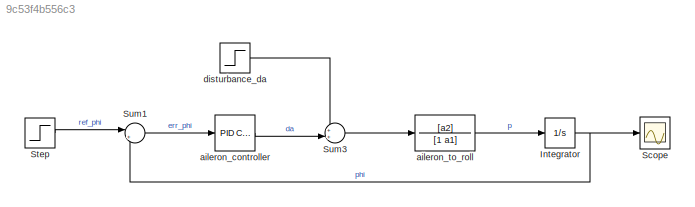
MODEL slx_9c53f4b556c3
KIND model
CONFIG AbsTol = auto
CONFIG EnableMultiTasking = off
CONFIG FixedStep = auto
CONFIG MaxStep = auto
CONFIG MinStep = auto
CONFIG RelTol = 1e-3
CONFIG SampleTimeConstraint = Unconstrained
CONFIG SolverName = VariableStepAuto
CONFIG StartTime = 0.0
CONFIG StopTime = 10.0
BLOCK [Integrator] Integrator
BLOCK [Scope] Scope
  Floating = off
  NumInputPorts = 1
  ScopeSpecificationString = Simulink.scopes.TimeScopeBlockCfg('CurrentConfiguration', extmgr.ConfigurationSet(extmgr.Configuration('Core','General UI',true),extmgr.Configuration('Core','Source UI',true),extmgr.Configuration('Sources','WiredSimulink',true),extmgr.Configuration('Visuals','Time Domain',true,'SerializedDisplays',{struct('MinYLimReal','-0.15268','MaxYLimReal','1.37408','YLabelReal','','MinYLimMag','0.00000','MaxY...<+1323ch>
BLOCK [Step] Step
  SampleTime = 0
BLOCK [Sum] Sum1
  Inputs = |+-
BLOCK [Sum] Sum3
  Inputs = ++|
BLOCK [Reference] aileron_controller  REF=slpidlib/PID Controller
  LibrarySourceBlock = simulink/Continuous/PID Controller
  SourceBlock = slpidlib/PID Controller
  SourceType = PID 1dof
BLOCK [TransferFcn] aileron_to_roll
  Denominator = [1 a1]
  Numerator = [a2]
BLOCK [Step] disturbance_da
  After = 0
  SampleTime = 0
NET Integrator:1 -> Scope:1, Sum1:2
LINE Step:1 -> Sum1:1
LINE Sum1:1 -> aileron_controller:1
LINE Sum3:1 -> aileron_to_roll:1
LINE aileron_controller:1 -> Sum3:2
LINE aileron_to_roll:1 -> Integrator:1
LINE disturbance_da:1 -> Sum3:1
note: NET lines group one-source signal fan-out (src -> all destinations, sorted); 1:1 wires keep LINE
